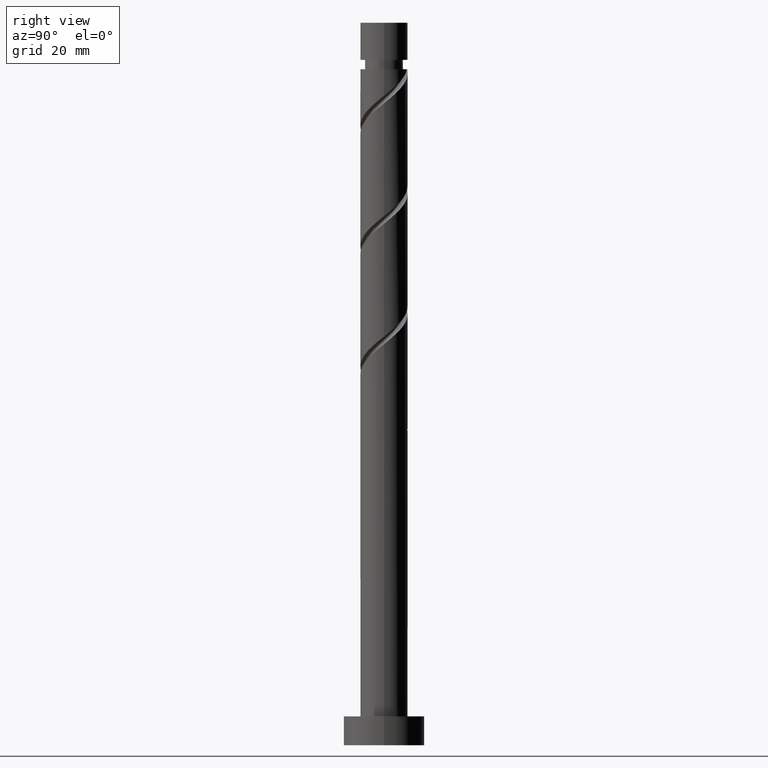
[diagram: clean part render]
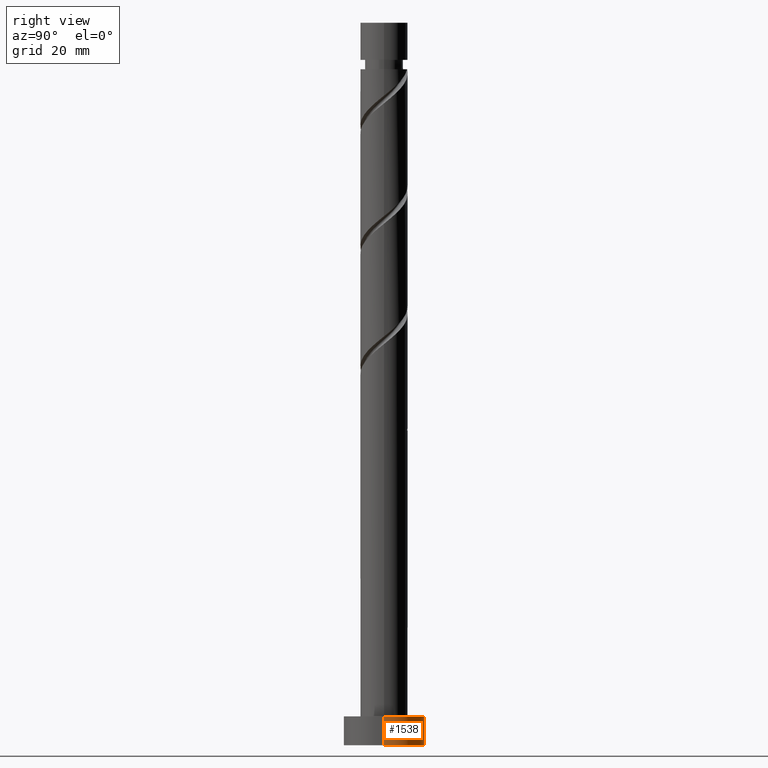
[diagram: same view with one face highlighted and labeled with its STEP entity id]
A machine part, right view. The second image highlights one B-rep face of the part: STEP entity #1538.
In plain terms, the highlighted cylindrical surface (partial cylindrical patch) has radius 7 mm, axis along (-0, -0, -1).
Its self-contained STEP definition (entity closure, byte-faithful):
#85 = EDGE_CURVE ( 'NONE', #743, #1449, #1545, .T. ) ;
#112 = DIRECTION ( 'NONE',  ( -0.000000000000000000, -0.000000000000000000, -1.000000000000000000 ) ) ;
#118 = DIRECTION ( 'NONE',  ( 1.000000000000000000, 0.000000000000000000, 0.000000000000000000 ) ) ;
#133 = EDGE_CURVE ( 'NONE', #743, #846, #835, .T. ) ;
#178 = DIRECTION ( 'NONE',  ( 1.000000000000000000, 0.000000000000000000, 0.000000000000000000 ) ) ;
#186 = EDGE_LOOP ( 'NONE', ( #310, #372, #1001, #1306 ) ) ;
#201 = VERTEX_POINT ( 'NONE', #738 ) ;
#224 = CARTESIAN_POINT ( 'NONE',  ( 7.000000000000000000, 8.572527594031473190E-16, 0.000000000000000000 ) ) ;
#232 = LINE ( 'NONE', #1172, #735 ) ;
#241 = CARTESIAN_POINT ( 'NONE',  ( 0.000000000000000000, 0.000000000000000000, 5.000000000000000000 ) ) ;
#310 = ORIENTED_EDGE ( 'NONE', *, *, #85, .F. ) ;
#336 = DIRECTION ( 'NONE',  ( 0.000000000000000000, 0.000000000000000000, 1.000000000000000000 ) ) ;
#349 = CIRCLE ( 'NONE', #1220, 7.000000000000000000 ) ;
#372 = ORIENTED_EDGE ( 'NONE', *, *, #133, .T. ) ;
#435 = AXIS2_PLACEMENT_3D ( 'NONE', #1462, #112, #732 ) ;
#460 = CARTESIAN_POINT ( 'NONE',  ( 7.000000000000000000, 8.572527594031473190E-16, 5.000000000000000000 ) ) ;
#577 = EDGE_CURVE ( 'NONE', #846, #201, #349, .T. ) ;
#606 = CARTESIAN_POINT ( 'NONE',  ( 7.000000000000000000, 8.572527594031473190E-16, 5.000000000000000000 ) ) ;
#646 = EDGE_CURVE ( 'NONE', #1449, #201, #232, .T. ) ;
#717 = FACE_OUTER_BOUND ( 'NONE', #186, .T. ) ;
#732 = DIRECTION ( 'NONE',  ( -1.000000000000000000, 0.000000000000000000, 0.000000000000000000 ) ) ;
#735 = VECTOR ( 'NONE', #1179, 1000.000000000000000 ) ;
#738 = CARTESIAN_POINT ( 'NONE',  ( -7.000000000000000000, 0.000000000000000000, 0.000000000000000000 ) ) ;
#743 = VERTEX_POINT ( 'NONE', #460 ) ;
#835 = LINE ( 'NONE', #606, #1290 ) ;
#846 = VERTEX_POINT ( 'NONE', #224 ) ;
#1001 = ORIENTED_EDGE ( 'NONE', *, *, #577, .T. ) ;
#1081 = CYLINDRICAL_SURFACE ( 'NONE', #435, 7.000000000000000000 ) ;
#1113 = CARTESIAN_POINT ( 'NONE',  ( -7.000000000000000000, 0.000000000000000000, 5.000000000000000000 ) ) ;
#1172 = CARTESIAN_POINT ( 'NONE',  ( -7.000000000000000000, 0.000000000000000000, 5.000000000000000000 ) ) ;
#1179 = DIRECTION ( 'NONE',  ( -0.000000000000000000, -0.000000000000000000, -1.000000000000000000 ) ) ;
#1220 = AXIS2_PLACEMENT_3D ( 'NONE', #1537, #1378, #178 ) ;
#1290 = VECTOR ( 'NONE', #1318, 1000.000000000000000 ) ;
#1306 = ORIENTED_EDGE ( 'NONE', *, *, #646, .F. ) ;
#1318 = DIRECTION ( 'NONE',  ( -0.000000000000000000, -0.000000000000000000, -1.000000000000000000 ) ) ;
#1366 = AXIS2_PLACEMENT_3D ( 'NONE', #241, #336, #118 ) ;
#1378 = DIRECTION ( 'NONE',  ( 0.000000000000000000, 0.000000000000000000, 1.000000000000000000 ) ) ;
#1449 = VERTEX_POINT ( 'NONE', #1113 ) ;
#1462 = CARTESIAN_POINT ( 'NONE',  ( 0.000000000000000000, 0.000000000000000000, 5.000000000000000000 ) ) ;
#1537 = CARTESIAN_POINT ( 'NONE',  ( 0.000000000000000000, 0.000000000000000000, 0.000000000000000000 ) ) ;
#1538 = ADVANCED_FACE ( 'NONE', ( #717 ), #1081, .T. ) ;
#1545 = CIRCLE ( 'NONE', #1366, 7.000000000000000000 ) ;